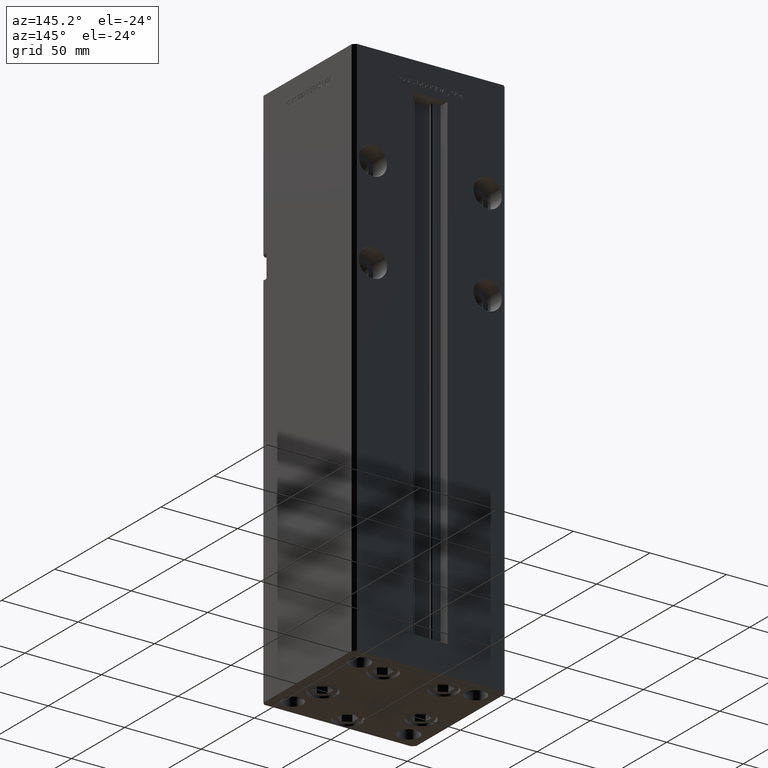
[diagram: clean part render]
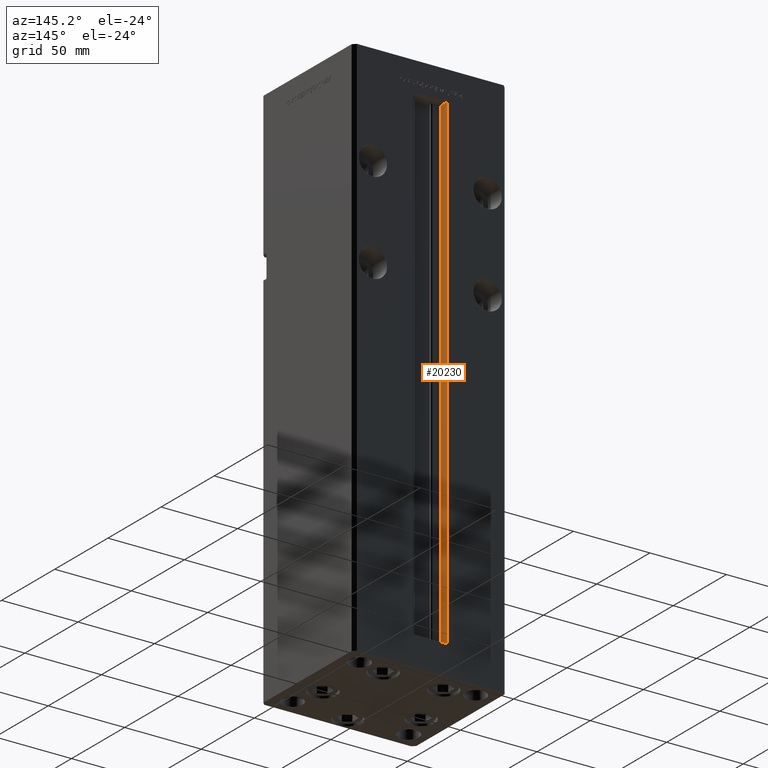
[diagram: same view with one face highlighted and labeled with its STEP entity id]
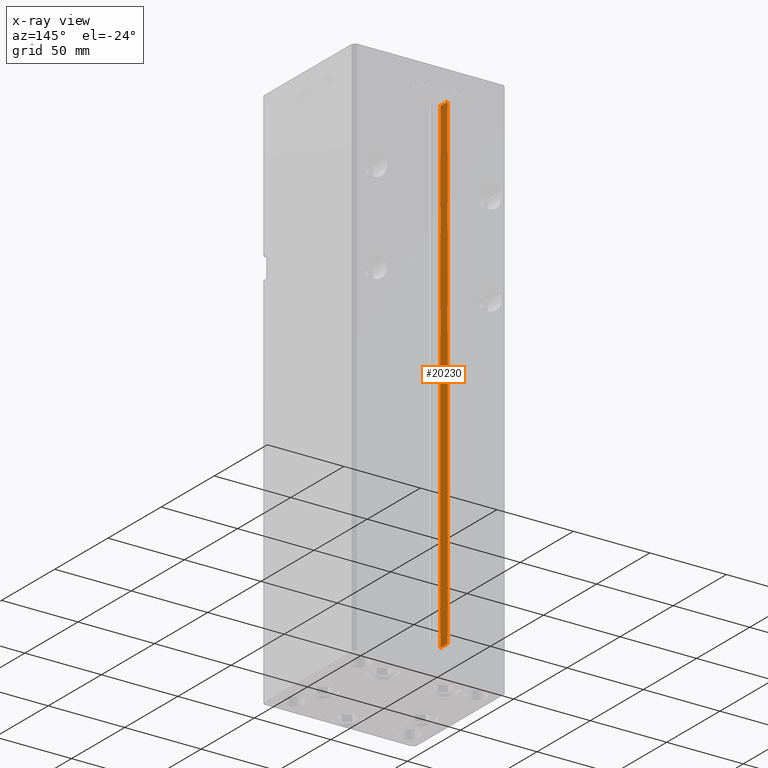
[diagram: x-ray of the same camera — body ghosted, the highlighted face saturated]
A machine part, auxiliary view. The second image highlights one B-rep face of the part: STEP entity #20230.
The next image is the same camera in x-ray: the body ghosted, the highlighted face saturated — about 0% of this face is hidden behind the body in this view.
In plain terms, the highlighted planar face has unit normal (-1, 0, 0).
Its self-contained STEP definition (entity closure, byte-faithful):
#1034 = LINE ( 'NONE', #26528, #28525 ) ;
#1482 = EDGE_CURVE ( 'NONE', #17726, #39951, #1034, .T. ) ;
#3919 = CARTESIAN_POINT ( 'NONE',  ( -11.24999999999999645, 37.00000000000000000, 0.000000000000000000 ) ) ;
#6205 = CARTESIAN_POINT ( 'NONE',  ( -11.24999999999999645, 43.50000000000000000, 0.000000000000000000 ) ) ;
#7416 = PLANE ( 'NONE',  #48579 ) ;
#8806 = VERTEX_POINT ( 'NONE', #46000 ) ;
#10333 = ORIENTED_EDGE ( 'NONE', *, *, #52936, .F. ) ;
#10389 = ORIENTED_EDGE ( 'NONE', *, *, #14551, .F. ) ;
#11555 = DIRECTION ( 'NONE',  ( -0.000000000000000000, -0.000000000000000000, 1.000000000000000000 ) ) ;
#14551 = EDGE_CURVE ( 'NONE', #8806, #17726, #15583, .T. ) ;
#15467 = DIRECTION ( 'NONE',  ( -0.000000000000000000, -1.000000000000000000, -0.000000000000000000 ) ) ;
#15583 = LINE ( 'NONE', #48339, #38292 ) ;
#17439 = DIRECTION ( 'NONE',  ( 0.000000000000000000, 1.000000000000000000, 0.000000000000000000 ) ) ;
#17726 = VERTEX_POINT ( 'NONE', #49345 ) ;
#19855 = VECTOR ( 'NONE', #15467, 1000.000000000000000 ) ;
#20023 = CARTESIAN_POINT ( 'NONE',  ( -11.24999999999999645, 37.00000000000000000, 0.000000000000000000 ) ) ;
#20230 = ADVANCED_FACE ( 'NONE', ( #47716 ), #7416, .F. ) ;
#20282 = LINE ( 'NONE', #20023, #19855 ) ;
#21363 = CARTESIAN_POINT ( 'NONE',  ( -11.24999999999999645, 43.50000000000000000, 318.5000000000000000 ) ) ;
#23171 = VECTOR ( 'NONE', #39500, 1000.000000000000000 ) ;
#26528 = CARTESIAN_POINT ( 'NONE',  ( -11.24999999999999645, 0.000000000000000000, 318.5000000000000000 ) ) ;
#27818 = DIRECTION ( 'NONE',  ( 0.000000000000000000, 0.000000000000000000, 1.000000000000000000 ) ) ;
#28525 = VECTOR ( 'NONE', #17439, 1000.000000000000000 ) ;
#28662 = CARTESIAN_POINT ( 'NONE',  ( -11.24999999999999645, 43.50000000000000000, 0.000000000000000000 ) ) ;
#28747 = VERTEX_POINT ( 'NONE', #28662 ) ;
#33074 = EDGE_CURVE ( 'NONE', #28747, #39951, #43007, .T. ) ;
#38292 = VECTOR ( 'NONE', #11555, 1000.000000000000000 ) ;
#39500 = DIRECTION ( 'NONE',  ( -0.000000000000000000, -0.000000000000000000, 1.000000000000000000 ) ) ;
#39951 = VERTEX_POINT ( 'NONE', #21363 ) ;
#40453 = ORIENTED_EDGE ( 'NONE', *, *, #1482, .F. ) ;
#41190 = EDGE_LOOP ( 'NONE', ( #10389, #10333, #51353, #40453 ) ) ;
#43007 = LINE ( 'NONE', #6205, #23171 ) ;
#46000 = CARTESIAN_POINT ( 'NONE',  ( -11.24999999999999645, 37.00000000000000000, 0.000000000000000000 ) ) ;
#47716 = FACE_OUTER_BOUND ( 'NONE', #41190, .T. ) ;
#48243 = DIRECTION ( 'NONE',  ( -1.000000000000000000, 0.000000000000000000, 0.000000000000000000 ) ) ;
#48339 = CARTESIAN_POINT ( 'NONE',  ( -11.24999999999999645, 37.00000000000000000, 0.000000000000000000 ) ) ;
#48579 = AXIS2_PLACEMENT_3D ( 'NONE', #3919, #48243, #27818 ) ;
#49345 = CARTESIAN_POINT ( 'NONE',  ( -11.24999999999999645, 37.00000000000000000, 318.5000000000000000 ) ) ;
#51353 = ORIENTED_EDGE ( 'NONE', *, *, #33074, .T. ) ;
#52936 = EDGE_CURVE ( 'NONE', #28747, #8806, #20282, .T. ) ;